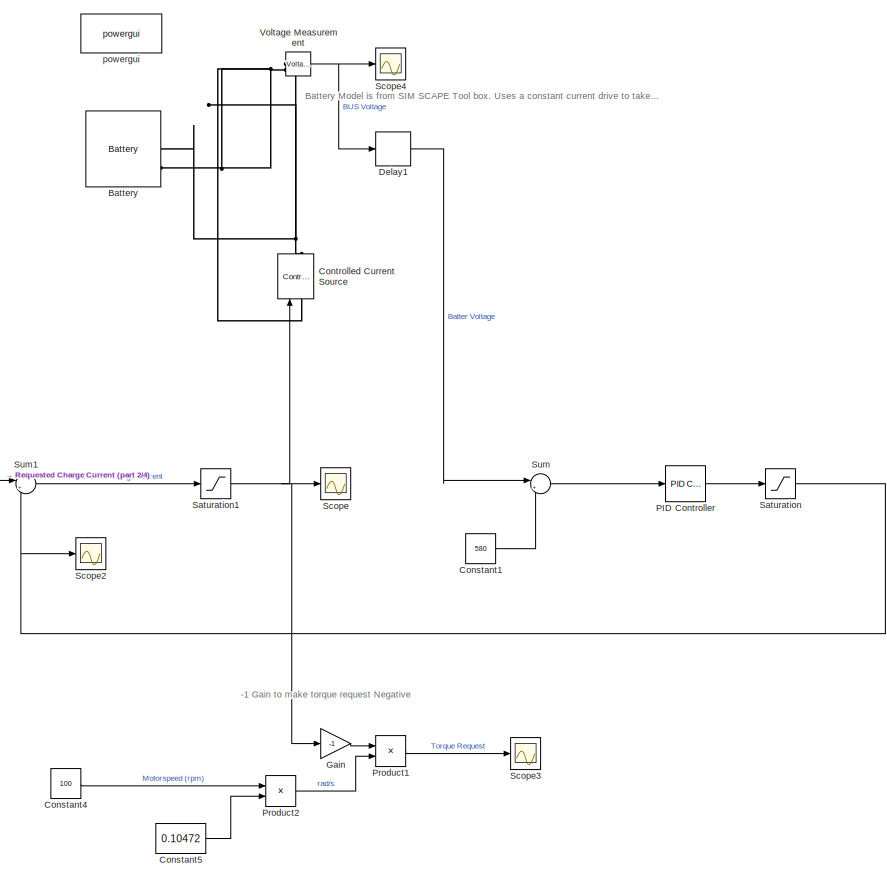
[diagram: root canvas - part 1/4, top center region]
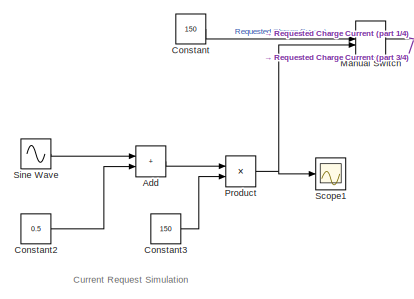
[diagram: root canvas - part 2/4, top left region]
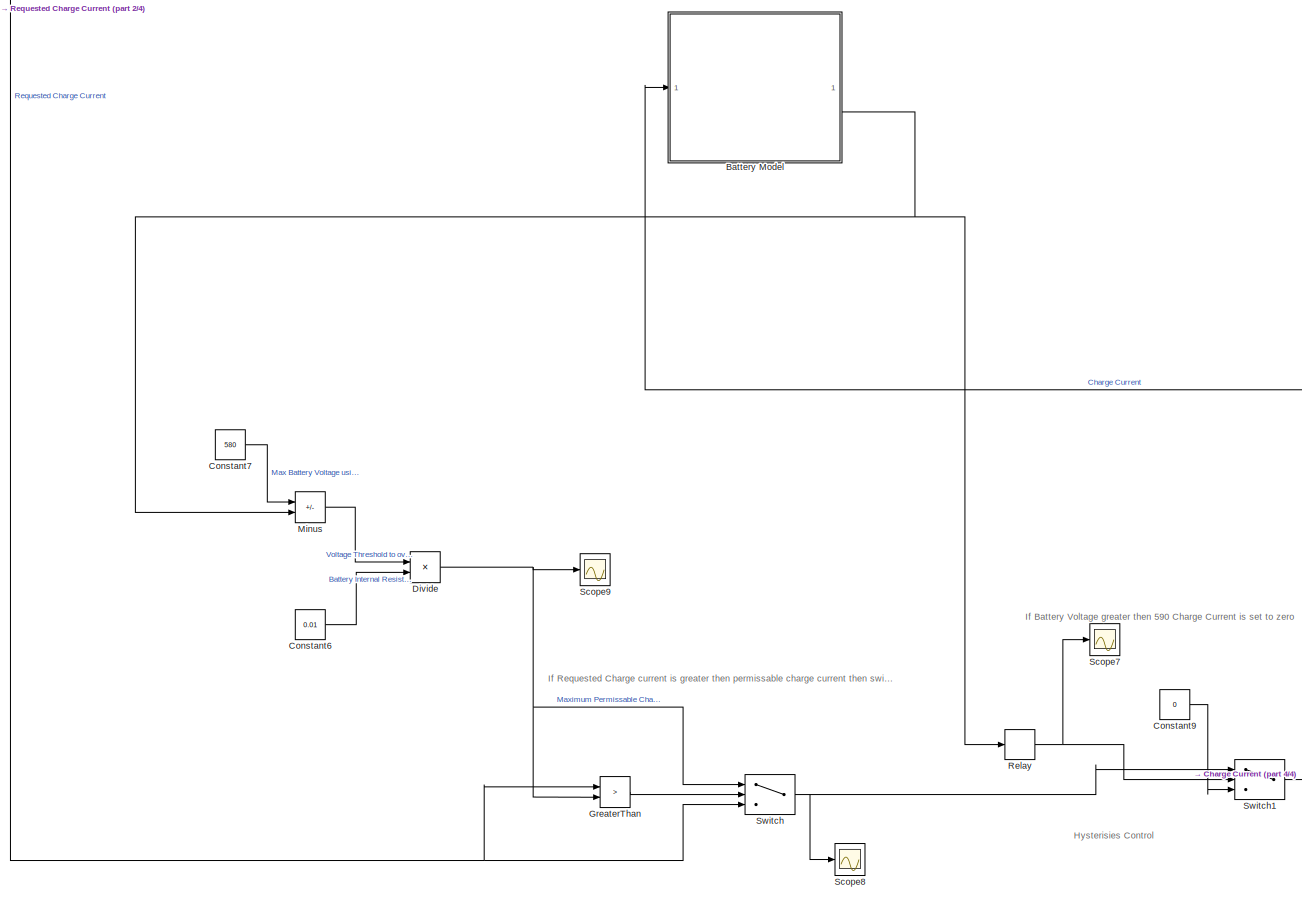
[diagram: root canvas - part 3/4, bottom center region]
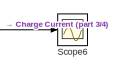
[diagram: root canvas - part 4/4, bottom right region]
MODEL slx_4b71c58ccdc4
KIND model
CONFIG AbsTol = auto
CONFIG EnableMultiTasking = off
CONFIG FixedStep = auto
CONFIG MaxStep = auto
CONFIG MinStep = auto
CONFIG RelTol = 1e-3
CONFIG SampleTimeConstraint = Unconstrained
CONFIG SolverName = VariableStepAuto
CONFIG StartTime = 0.0
CONFIG StopTime = 10000
BLOCK [Sum] Add
  IconShape = rectangular
BLOCK [Reference] Battery  REF=spsBatteryLib/Battery
  LibrarySourceBlock = sps_lib/Sources/Battery
  SourceBlock = spsBatteryLib/Battery
  SourceType = Battery
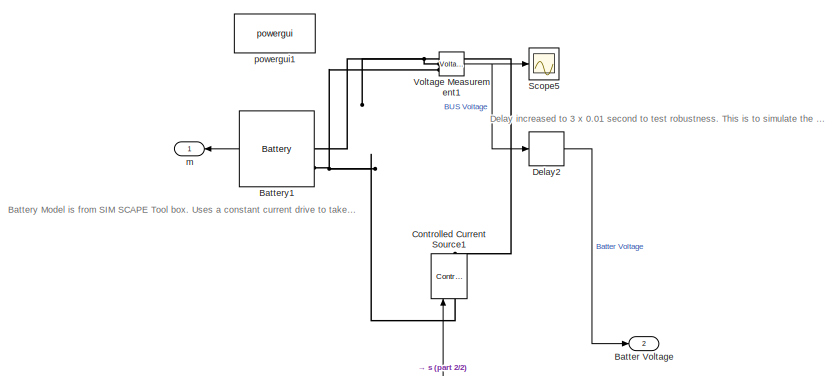
[diagram: Battery Model - part 1/2, top left region]
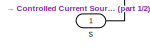
[diagram: Battery Model - part 2/2, bottom right region]
BLOCK [SubSystem] Battery Model
BLOCK [Outport] Battery Model/Batter Voltage
  Port = 2
BLOCK [Reference] Battery Model/Battery1  REF=spsBatteryLib/Battery
  LibrarySourceBlock = sps_lib/Sources/Battery
  SourceBlock = spsBatteryLib/Battery
  SourceType = Battery
BLOCK [Reference] Battery Model/Controlled Current Source1  REF=spsControlledCurrentSourceLib/Controlled Current Source
  LibrarySourceBlock = sps_lib/Sources/Controlled Current Source
  SourceBlock = spsControlledCurrentSourceLib/Controlled Current Source
  SourceType = Controlled Current Source
BLOCK [Delay] Battery Model/Delay2
  DelayLength = 5
  InitialCondition = 580
  InputPortMap = u0
BLOCK [Scope] Battery Model/Scope5
  Floating = off
  NumInputPorts = 1
  ScopeSpecificationString = Simulink.scopes.TimeScopeBlockCfg('CurrentConfiguration', extmgr.ConfigurationSet(extmgr.Configuration('Core','General UI',true),extmgr.Configuration('Core','Source UI',true),extmgr.Configuration('Sources','WiredSimulink',true,'DataLoggingVariableName','ScopeData1'),extmgr.Configuration('Visuals','Time Domain',true,'SerializedDisplays',{struct('MinYLimReal','576.69043','MaxYLimReal','580.29452','Y...<+1550ch>
BLOCK [Reference] Battery Model/Voltage Measurement1  REF=spsVoltageMeasurementLib/Voltage Measurement
  LibrarySourceBlock = sps_lib/Sensors and Measurements/Voltage Measurement
  SourceBlock = spsVoltageMeasurementLib/Voltage Measurement
  SourceType = Voltage Measurement
  UserDataPersistent = on
BLOCK [Outport] Battery Model/m
BLOCK [Reference] Battery Model/powergui1  REF=spspowerguiLib/powergui
  LibrarySourceBlock = sps_lib/powergui
  Priority = 1
  SourceBlock = spspowerguiLib/powergui
  SourceType = PSB option menu block
BLOCK [Inport] Battery Model/s
BLOCK [Constant] Constant
  Value = 150
BLOCK [Constant] Constant1
  Value = 580
BLOCK [Constant] Constant2
  Value = 0.5
BLOCK [Constant] Constant3
  Value = 150
BLOCK [Constant] Constant4
  Value = 100
BLOCK [Constant] Constant5
  Value = 0.10472
BLOCK [Constant] Constant6
  Value = 0.01
BLOCK [Constant] Constant7
  Value = 580
BLOCK [Constant] Constant9
  Value = 0
BLOCK [Reference] Controlled Current Source  REF=spsControlledCurrentSourceLib/Controlled Current Source
  LibrarySourceBlock = sps_lib/Sources/Controlled Current Source
  SourceBlock = spsControlledCurrentSourceLib/Controlled Current Source
  SourceType = Controlled Current Source
BLOCK [Delay] Delay1
  DelayLength = 1
  InitialCondition = 600
  InputPortMap = u0
BLOCK [Product] Divide
  Inputs = */
BLOCK [Gain] Gain
  Gain = -1
BLOCK [RelationalOperator] GreaterThan
  InputSameDT = off
  Operator = >
  OutDataTypeStr = boolean
  RndMeth = Simplest
BLOCK [ManualSwitch] Manual Switch
  CurrentSetting = 0
BLOCK [Sum] Minus
  IconShape = rectangular
  Inputs = +-
BLOCK [Reference] PID Controller  REF=slpidlib/PID Controller
  LibrarySourceBlock = simulink/Continuous/PID Controller
  SourceBlock = slpidlib/PID Controller
  SourceType = PID 1dof
BLOCK [Product] Product
BLOCK [Product] Product1
BLOCK [Product] Product2
BLOCK [Relay] Relay
  OffOutputValue = 1
  OffSwitchValue = 585
  OnOutputValue = 0
  OnSwitchValue = 590
BLOCK [Saturate] Saturation
  LowerLimit = 0
  UpperLimit = 150
BLOCK [Saturate] Saturation1
  LowerLimit = 0
  UpperLimit = inf
BLOCK [Scope] Scope
  Floating = off
  NumInputPorts = 1
  ScopeSpecificationString = Simulink.scopes.TimeScopeBlockCfg('CurrentConfiguration', extmgr.ConfigurationSet(extmgr.Configuration('Core','General UI',true),extmgr.Configuration('Core','Source UI',true),extmgr.Configuration('Sources','WiredSimulink',true,'DataLoggingVariableName','ScopeData1'),extmgr.Configuration('Visuals','Time Domain',true,'SerializedDisplays',{struct('MinYLimReal','-18.75','MaxYLimReal','168.75','YLabelR...<+1451ch>
BLOCK [Scope] Scope1
  Floating = off
  NumInputPorts = 1
  ScopeSpecificationString = Simulink.scopes.TimeScopeBlockCfg('CurrentConfiguration', extmgr.ConfigurationSet(extmgr.Configuration('Core','General UI',true),extmgr.Configuration('Core','Source UI',true),extmgr.Configuration('Sources','WiredSimulink',true,'DataLoggingVariableName','ScopeData2'),extmgr.Configuration('Visuals','Time Domain',true,'SerializedDisplays',{struct('MinYLimReal','-18.75','MaxYLimReal','168.75','YLabelR...<+1447ch>
BLOCK [Scope] Scope2
  Floating = off
  NumInputPorts = 1
  ScopeSpecificationString = Simulink.scopes.TimeScopeBlockCfg('CurrentConfiguration', extmgr.ConfigurationSet(extmgr.Configuration('Core','General UI',true),extmgr.Configuration('Core','Source UI',true),extmgr.Configuration('Sources','WiredSimulink',true,'DataLoggingVariableName','ScopeData3'),extmgr.Configuration('Visuals','Time Domain',true,'SerializedDisplays',{struct('MinYLimReal','-18.75','MaxYLimReal','168.75','YLabelR...<+1450ch>
BLOCK [Scope] Scope3
  Floating = off
  NumInputPorts = 1
  ScopeSpecificationString = Simulink.scopes.TimeScopeBlockCfg('CurrentConfiguration', extmgr.ConfigurationSet(extmgr.Configuration('Core','General UI',true),extmgr.Configuration('Core','Source UI',true),extmgr.Configuration('Sources','WiredSimulink',true,'DataLoggingVariableName','ScopeData1'),extmgr.Configuration('Visuals','Time Domain',true,'SerializedDisplays',{struct('MinYLimReal','-16875.00000','MaxYLimReal','1875.00000...<+1490ch>
BLOCK [Scope] Scope4
  Floating = off
  NumInputPorts = 1
  ScopeSpecificationString = Simulink.scopes.TimeScopeBlockCfg('CurrentConfiguration', extmgr.ConfigurationSet(extmgr.Configuration('Core','General UI',true),extmgr.Configuration('Core','Source UI',true),extmgr.Configuration('Sources','WiredSimulink',true),extmgr.Configuration('Visuals','Time Domain',true,'SerializedDisplays',{struct('MinYLimReal','576.33949','MaxYLimReal','584.05394','YLabelReal','','MinYLimMag','576.33949',...<+1492ch>
BLOCK [Scope] Scope6
  Floating = off
  NumInputPorts = 1
  ScopeSpecificationString = Simulink.scopes.TimeScopeBlockCfg('CurrentConfiguration', extmgr.ConfigurationSet(extmgr.Configuration('Core','General UI',true),extmgr.Configuration('Core','Source UI',true),extmgr.Configuration('Sources','WiredSimulink',true,'DataLoggingVariableName','ScopeData2'),extmgr.Configuration('Visuals','Time Domain',true,'SerializedDisplays',{struct('MinYLimReal','-18.75','MaxYLimReal','168.75','YLabelR...<+1485ch>
BLOCK [Scope] Scope7
  Floating = off
  NumInputPorts = 1
  ScopeSpecificationString = Simulink.scopes.TimeScopeBlockCfg('CurrentConfiguration', extmgr.ConfigurationSet(extmgr.Configuration('Core','General UI',true),extmgr.Configuration('Core','Source UI',true),extmgr.Configuration('Sources','WiredSimulink',true,'DataLoggingVariableName','ScopeData3'),extmgr.Configuration('Visuals','Time Domain',true,'SerializedDisplays',{struct('MinYLimReal','-0.125','MaxYLimReal','1.125','YLabelRe...<+1485ch>
BLOCK [Scope] Scope8
  Floating = off
  NumInputPorts = 1
  ScopeSpecificationString = Simulink.scopes.TimeScopeBlockCfg('CurrentConfiguration', extmgr.ConfigurationSet(extmgr.Configuration('Core','General UI',true),extmgr.Configuration('Core','Source UI',true),extmgr.Configuration('Sources','WiredSimulink',true,'DataLoggingVariableName','ScopeData1'),extmgr.Configuration('Visuals','Time Domain',true,'SerializedDisplays',{struct('MinYLimReal','-12.85079','MaxYLimReal','115.65712','Y...<+1489ch>
BLOCK [Scope] Scope9
  Floating = off
  NumInputPorts = 1
  ScopeSpecificationString = Simulink.scopes.TimeScopeBlockCfg('CurrentConfiguration', extmgr.ConfigurationSet(extmgr.Configuration('Core','General UI',true),extmgr.Configuration('Core','Source UI',true),extmgr.Configuration('Sources','WiredSimulink',true,'DataLoggingVariableName','ScopeData2'),extmgr.Configuration('Visuals','Time Domain',true,'SerializedDisplays',{struct('MinYLimReal','-2286.86448','MaxYLimReal','581.78033',...<+1546ch>
BLOCK [Sin] Sine Wave
  Amplitude = 0.5
  Frequency = 0.01
  SampleTime = 0
BLOCK [Sum] Sum
  Inputs = |+-
BLOCK [Sum] Sum1
  Inputs = |+-
BLOCK [Switch] Switch
  Criteria = u2 > Threshold
  InputSameDT = off
  SaturateOnIntegerOverflow = off
BLOCK [Switch] Switch1
  Criteria = u2 > Threshold
  InputSameDT = off
  SaturateOnIntegerOverflow = off
  Threshold = 0.5
BLOCK [Reference] Voltage Measurement  REF=spsVoltageMeasurementLib/Voltage Measurement
  LibrarySourceBlock = sps_lib/Sensors and Measurements/Voltage Measurement
  SourceBlock = spsVoltageMeasurementLib/Voltage Measurement
  SourceType = Voltage Measurement
  UserDataPersistent = on
BLOCK [Reference] powergui  REF=spspowerguiLib/powergui
  LibrarySourceBlock = sps_lib/powergui
  Priority = 1
  SourceBlock = spspowerguiLib/powergui
  SourceType = PSB option menu block
ANNOTATION (root): -1 Gain to make torque request Negative
ANNOTATION (root): Battery Model is from SIM SCAPE Tool box. Uses a constant current drive to take the current request from controller and apply load to the battery
ANNOTATION (root): Current Request Simulation
ANNOTATION (root): Hysterisies Control
ANNOTATION (root): If Battery Voltage greater then 590 Charge Current is set to zero
ANNOTATION (root): If Requested Charge current is greater then permissable charge current then switch to permisable
ANNOTATION Battery Model: Battery Model is from SIM SCAPE Tool box. Uses a constant current drive to take the current request from controller and apply load to the battery
ANNOTATION Battery Model: Delay increased to 3 x 0.01 second to test robustness. This is to simulate the delay of having voltage measurments sent to the VCU
LINE Add:1 -> Product:1
LINE Battery Model/Battery1:1 -> Battery Model/m:1
LINE Battery Model/Delay2:1 -> Battery Model/Batter Voltage:1
NET Battery Model/Voltage Measurement1:1 -> Battery Model/Delay2:1, Battery Model/Scope5:1
LINE Battery Model/s:1 -> Battery Model/Controlled Current Source1:1
NET Battery Model:2 -> Minus:2, Relay:1
LINE Constant1:1 -> Sum:2
LINE Constant2:1 -> Add:2
LINE Constant3:1 -> Product:2
LINE Constant4:1 -> Product2:1
LINE Constant5:1 -> Product2:2
LINE Constant6:1 -> Divide:2
LINE Constant7:1 -> Minus:1
LINE Constant9:1 -> Switch1:3
LINE Constant:1 -> Manual Switch:1
LINE Delay1:1 -> Sum:1
NET Divide:1 -> GreaterThan:2, Scope9:1, Switch:1
LINE Gain:1 -> Product1:1
LINE GreaterThan:1 -> Switch:2
NET Manual Switch:1 -> GreaterThan:1, Sum1:1, Switch:3
LINE Minus:1 -> Divide:1
LINE PID Controller:1 -> Saturation:1
LINE Product1:1 -> Scope3:1
LINE Product2:1 -> Product1:2
NET Product:1 -> Manual Switch:2, Scope1:1
NET Relay:1 -> Scope7:1, Switch1:2
NET Saturation1:1 -> Controlled Current Source:1, Gain:1, Scope:1
NET Saturation:1 -> Scope2:1, Sum1:2
LINE Sine Wave:1 -> Add:1
LINE Sum1:1 -> Saturation1:1
LINE Sum:1 -> PID Controller:1
NET Switch1:1 -> Battery Model:1, Scope6:1
NET Switch:1 -> Scope8:1, Switch1:1
NET Voltage Measurement:1 -> Delay1:1, Scope4:1
PNET net1: Battery Model/Battery1:LConn1 -- Battery Model/Controlled Current Source1:RConn1 -- Battery Model/Voltage Measurement1:LConn1
PNET net2: Battery Model/Battery1:LConn2 -- Battery Model/Controlled Current Source1:LConn1 -- Battery Model/Voltage Measurement1:LConn2
PNET net3: Battery:LConn1 -- Controlled Current Source:RConn1 -- Voltage Measurement:LConn1
PNET net4: Battery:LConn2 -- Controlled Current Source:LConn1 -- Voltage Measurement:LConn2
note: NET lines group one-source signal fan-out (src -> all destinations, sorted); 1:1 wires keep LINE; PNET lines group multi-terminal physical nets as a canonical sorted terminal list (undirected conserving connections); 2-terminal nets keep the pairwise PLINE form
